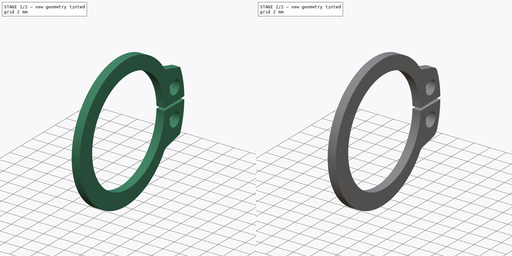
[diagram: build sequence overview — one tinted view per stage of 2, left to right]
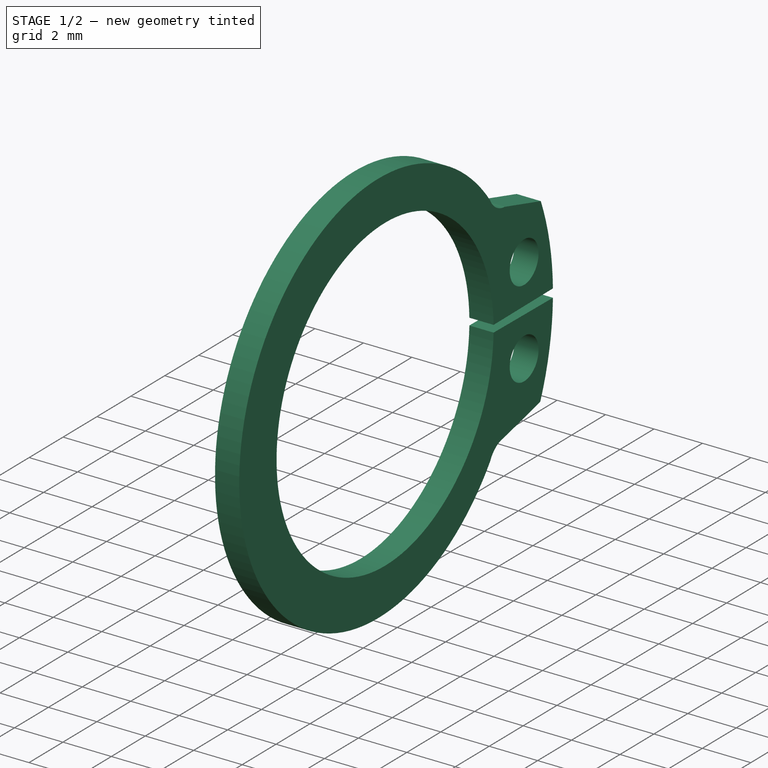
[diagram: stage 1 of 2 — iso view after this stage's code; geometry added in this stage tinted green]
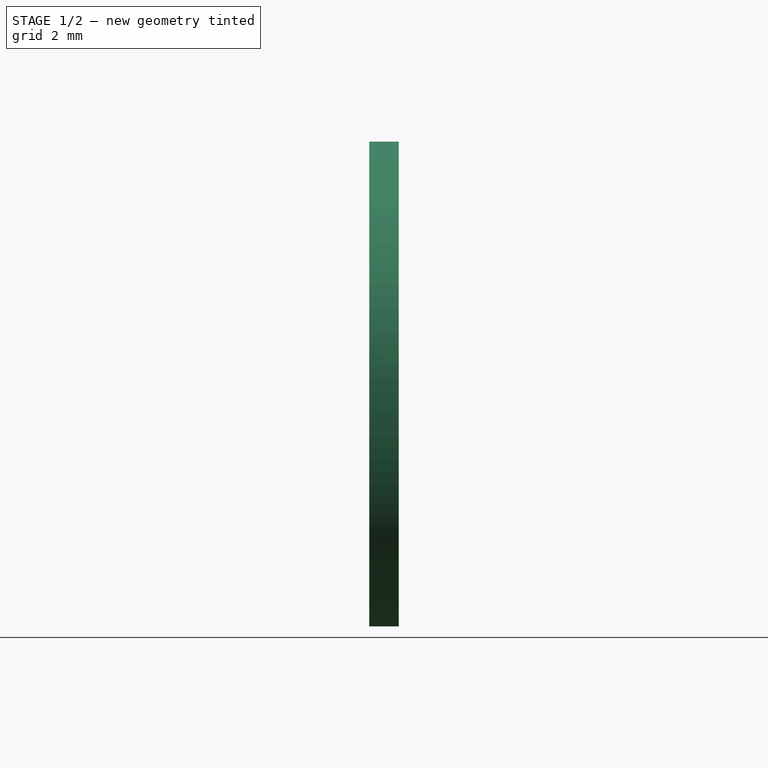
[diagram: stage 1 of 2 — front view after this stage's code; geometry added in this stage tinted green]
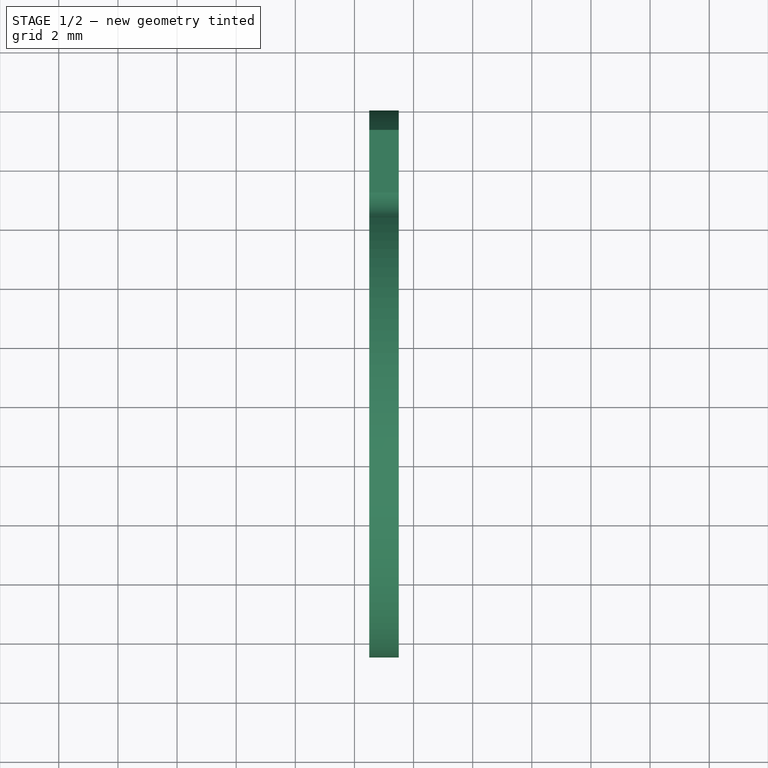
[diagram: stage 1 of 2 — top view after this stage's code; geometry added in this stage tinted green]
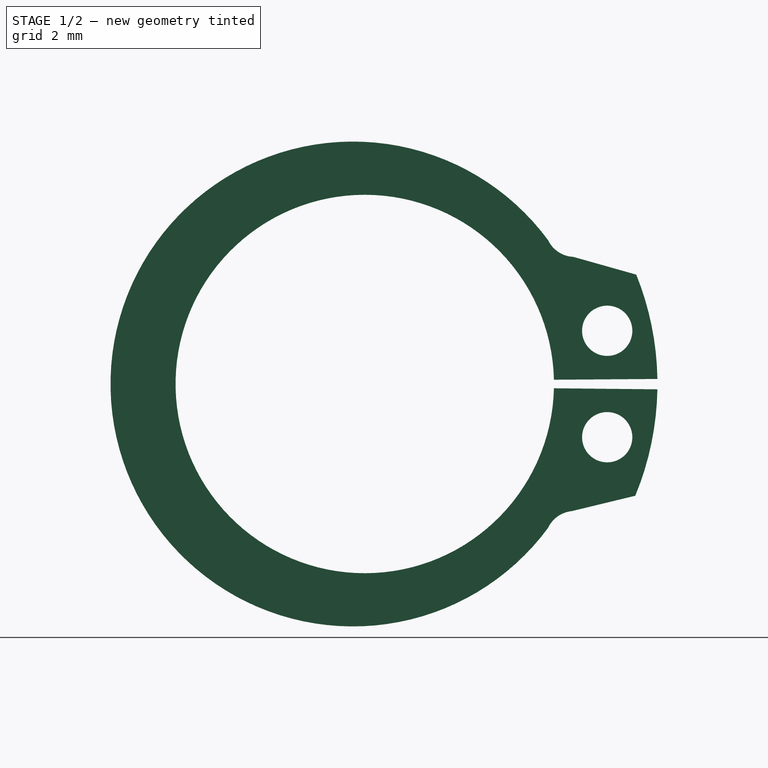
[diagram: stage 1 of 2 — right view after this stage's code; geometry added in this stage tinted green]
FCSTD DOCUMENT  (FreeCAD 0.15R4671 (Git))
Label: DIN471_CLASS_A_M14RetainingRings
License: CreativeCommons Attribution-ShareAlike
LicenseURL: http://creativecommons.org/licenses/by-sa/4.0/
objects: Sketcher::SketchObject×1, PartDesign::Pad×1, PartDesign::Fillet×1
note: 4 computed .brp shape members not serialized (recipe doc carries the construction recipe); baked Part::Feature solids carry a one-line shape summary decoded from their .brp

FEATURE [Sketcher::SketchObject] Sketch
  Placement = pos=(0.5,0,0) rot=(0.57735,0.57735,0.57735;2.0944rad)
  sketch-geometry (12):
    g0: ArcOfCircle CenterX=0 CenterY=0 CenterZ=0 NormalX=0 NormalY=0 NormalZ=1 Radius=6.4 StartAngle=0.0226148 EndAngle=6.26057
    g1: ArcOfCircle CenterX=-0.4 CenterY=0 CenterZ=0 NormalX=0 NormalY=0 NormalZ=1 Radius=8.2 StartAngle=0.635326 EndAngle=5.64786
    g2: ArcOfCircle CenterX=0 CenterY=0 CenterZ=0 NormalX=0 NormalY=0 NormalZ=1 Radius=9.9 StartAngle=0.0171726 EndAngle=0.383035
    g3: ArcOfCircle CenterX=0 CenterY=0 CenterZ=0 NormalX=0 NormalY=0 NormalZ=1 Radius=9.9 StartAngle=5.89144 EndAngle=6.265
    g4: Circle CenterX=8.2 CenterY=1.8 CenterZ=0 NormalX=0 NormalY=0 NormalZ=1 Radius=0.85
    g5: Circle CenterX=8.2 CenterY=-1.8 CenterZ=0 NormalX=0 NormalY=0 NormalZ=1 Radius=0.85
    g6: LineSegment StartX=6.39836 StartY=0.144722 StartZ=0 EndX=9.89854 EndY=0.17 EndZ=0
    g7: LineSegment StartX=6.39836 StartY=-0.144722 StartZ=0 EndX=9.89836 EndY=-0.18 EndZ=0
    g8: LineSegment StartX=9.15 StartY=-3.77988 StartZ=0 EndX=7 EndY=-4.3 EndZ=0
    g9: LineSegment StartX=7.0535 StartY=4.3 StartZ=0 EndX=9.18259 EndY=3.7 EndZ=0
    g10: ArcOfCircle CenterX=7.10157 CenterY=5.29884 CenterZ=0 NormalX=0 NormalY=0 NormalZ=1 Radius=1 StartAngle=3.58901 EndAngle=4.6643
    g11: ArcOfCircle CenterX=7.10358 CenterY=-5.29462 CenterZ=0 NormalX=0 NormalY=0 NormalZ=1 Radius=1 StartAngle=1.67457 EndAngle=2.69886
  constraints (38):
    c: Coincident(g0,g-1)
    c: PointOnObject(g1,g-1)
    c: Coincident(g2,g-1)
    c: Coincident(g3,g-1)
    c: Radius(g4) = 0.85
    c: Radius(g5) = 0.85
    c: Coincident(g6,g0)
    c: Coincident(g6,g2)
    c: Coincident(g7,g0)
    c: Coincident(g7,g3)
    c: Radius(g1) = 8.2
    c: DistanceX(g-1,g5) = 8.2
    c: Symmetric(g4,g5,g-1)
    c: Equal(g3,g2)
    c: Radius(g2) = 9.9
    c: Coincident(g8,g3)
    c: Coincident(g10,g1)
    c: Coincident(g10,g9)
    c: Radius(g10) = 1
    c: Coincident(g11,g1)
    c: Coincident(g11,g8)
    c: Radius(g11) = 1
    c: Symmetric(g0,g0,g-1)
    c: DistanceX(g0,g3) = 3.5
    c: Radius(g0) = 6.4
    c: Coincident(g9,g2)
    c: DistanceX(g-1,g1) = -0.4
    c: DistanceY(g-1,g8) = -4.3
    c: DistanceX(g-1,g8) = 7
    c: DistanceX(g8) = -2.15
    c: Equal(g8,g9)
    c: DistanceY(g-1,g5) = -1.8
    c: Symmetric(g1,g1,g-1)
    c: DistanceX(g-1,g1) = 6.2
    c: DistanceY(g2,g3) = -0.35
    c: DistanceY(g-1,g3) = -0.18
    c: DistanceY(g-1,g9) = 4.3
    c: DistanceY(g-1,g2) = 3.7
FEATURE [PartDesign::Pad] Pad
  Length = 1
  Length2 = 100
  Placement = pos=(0.5,0,0) rot=(0.57735,0.57735,0.57735;2.0944rad)
  Sketch = -> Sketch
  Type = 0
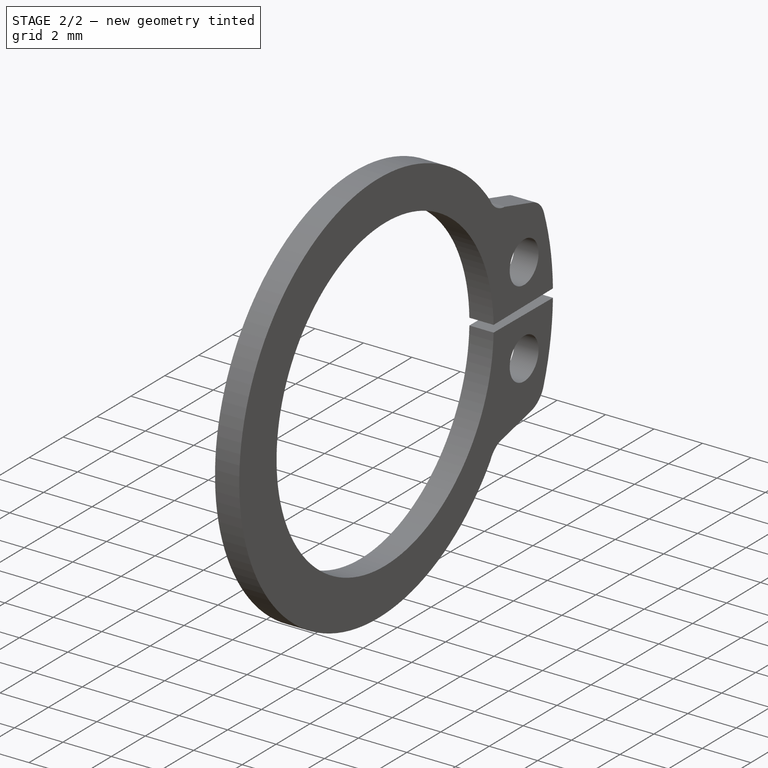
[diagram: stage 2 of 2 — iso view after this stage's code; geometry added in this stage tinted green]
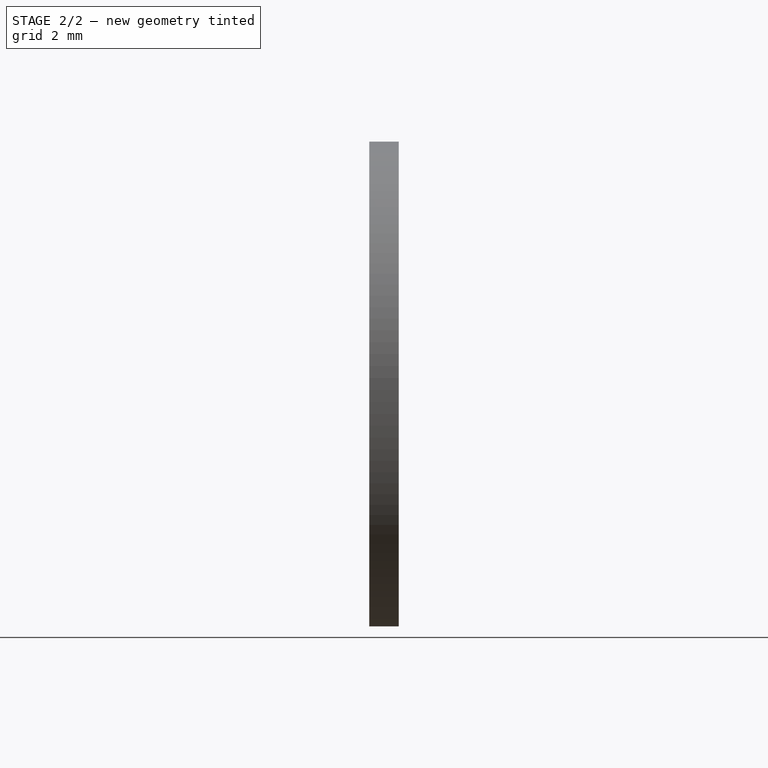
[diagram: stage 2 of 2 — front view after this stage's code; geometry added in this stage tinted green]
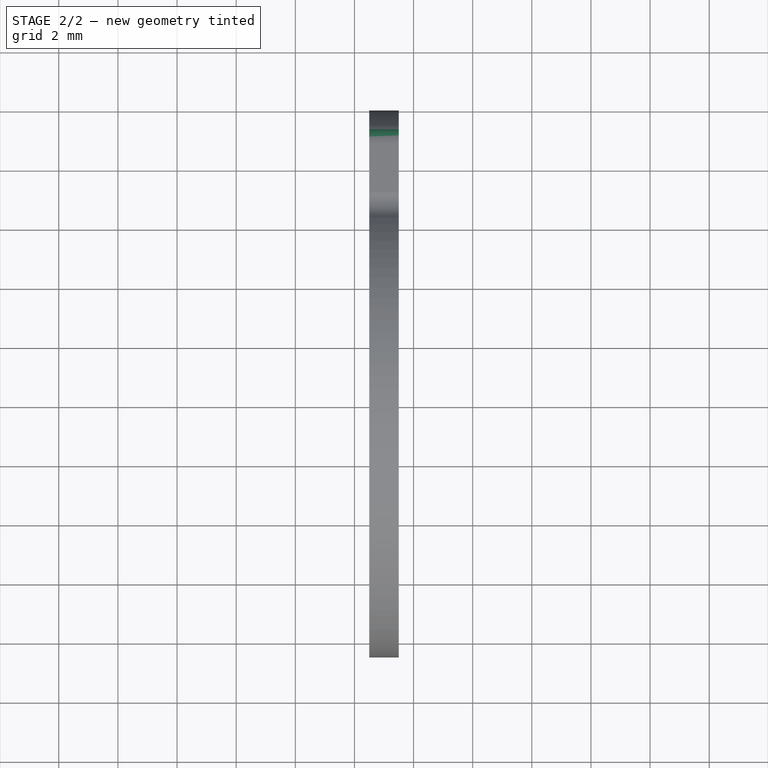
[diagram: stage 2 of 2 — top view after this stage's code; geometry added in this stage tinted green]
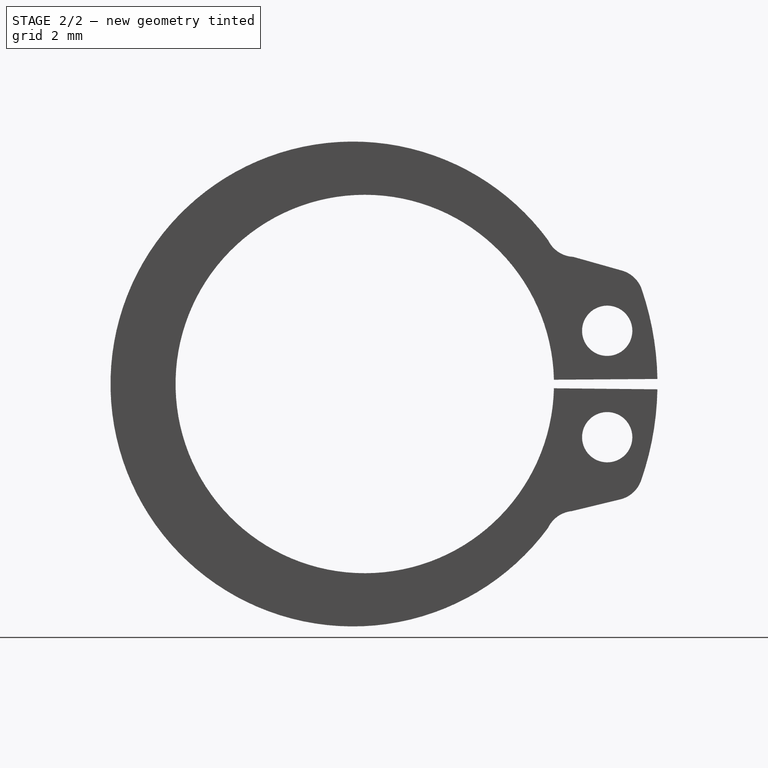
[diagram: stage 2 of 2 — right view after this stage's code; geometry added in this stage tinted green]
FEATURE [PartDesign::Fillet] Fillet
  Base = -> Pad [Edge26,Edge11]
  Placement = pos=(0.5,0,0) rot=(0.57735,0.57735,0.57735;2.0944rad)
  Radius = 1
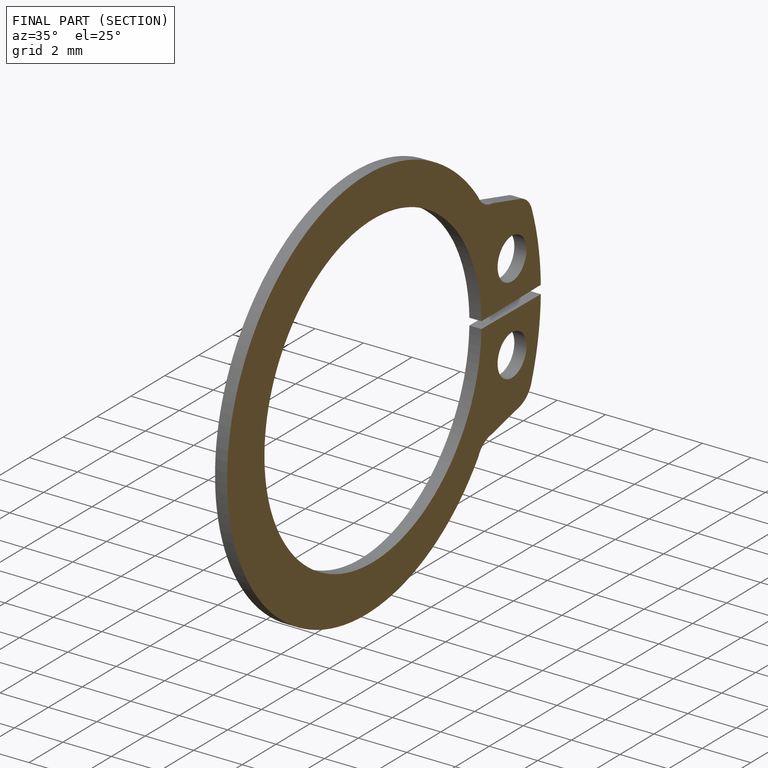
[diagram: finished part — half-section view (interior)]
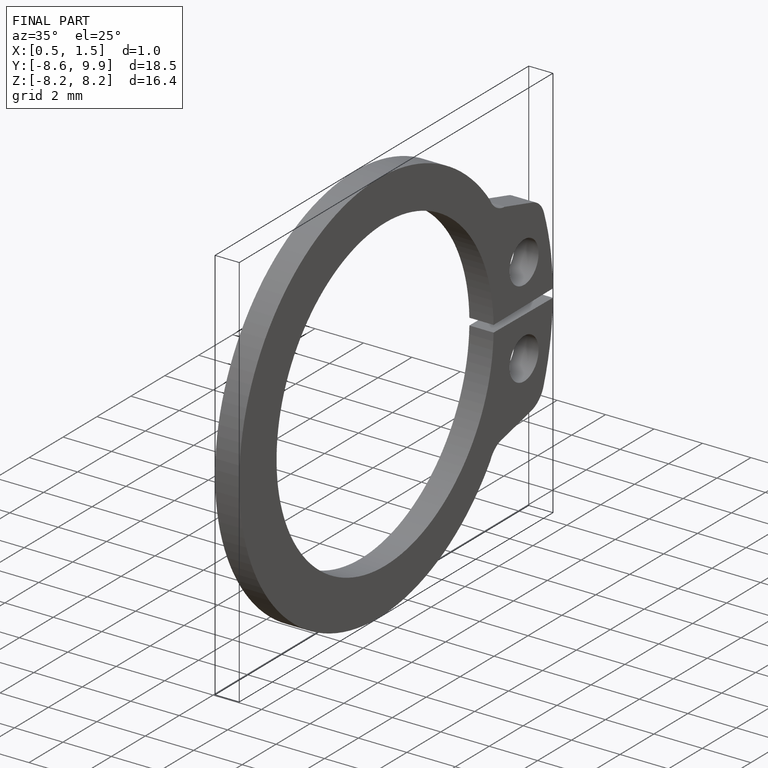
[diagram: finished part — iso view with bounding-box wireframe]
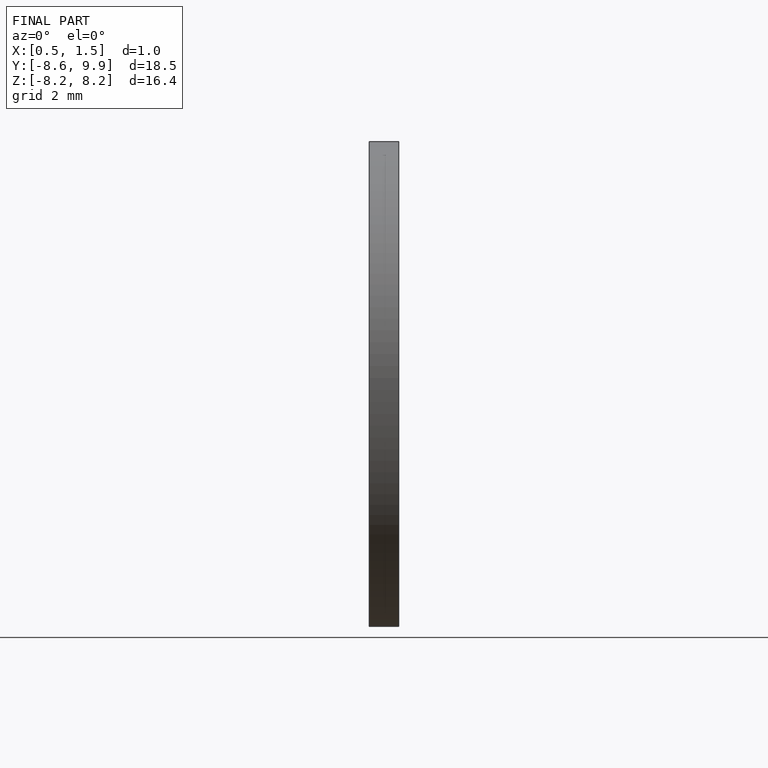
[diagram: finished part — front view with bounding-box wireframe]
